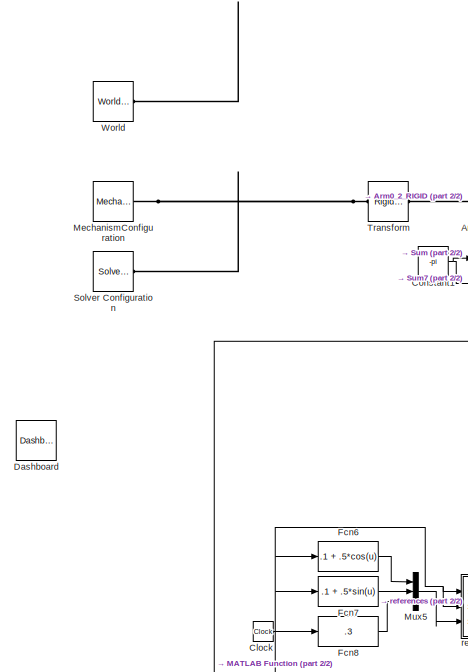
[diagram: root canvas - part 1/2, left side, full height]
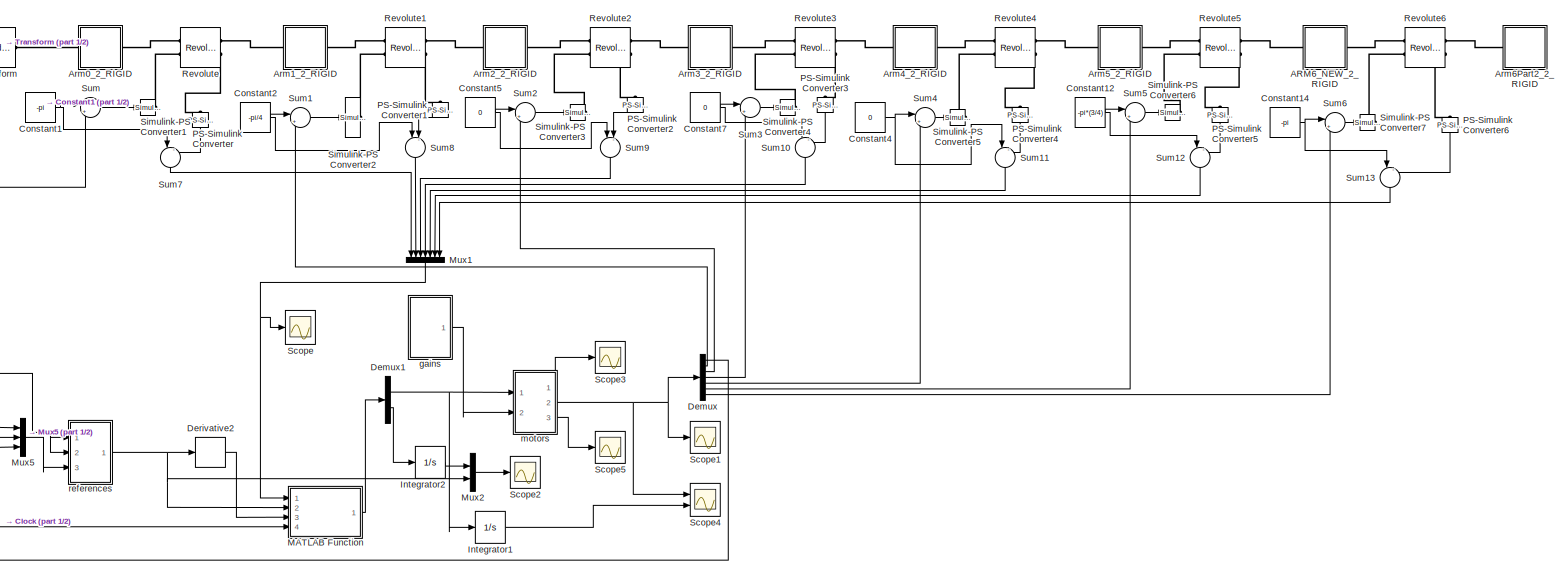
[diagram: root canvas - part 2/2, most of the canvas]
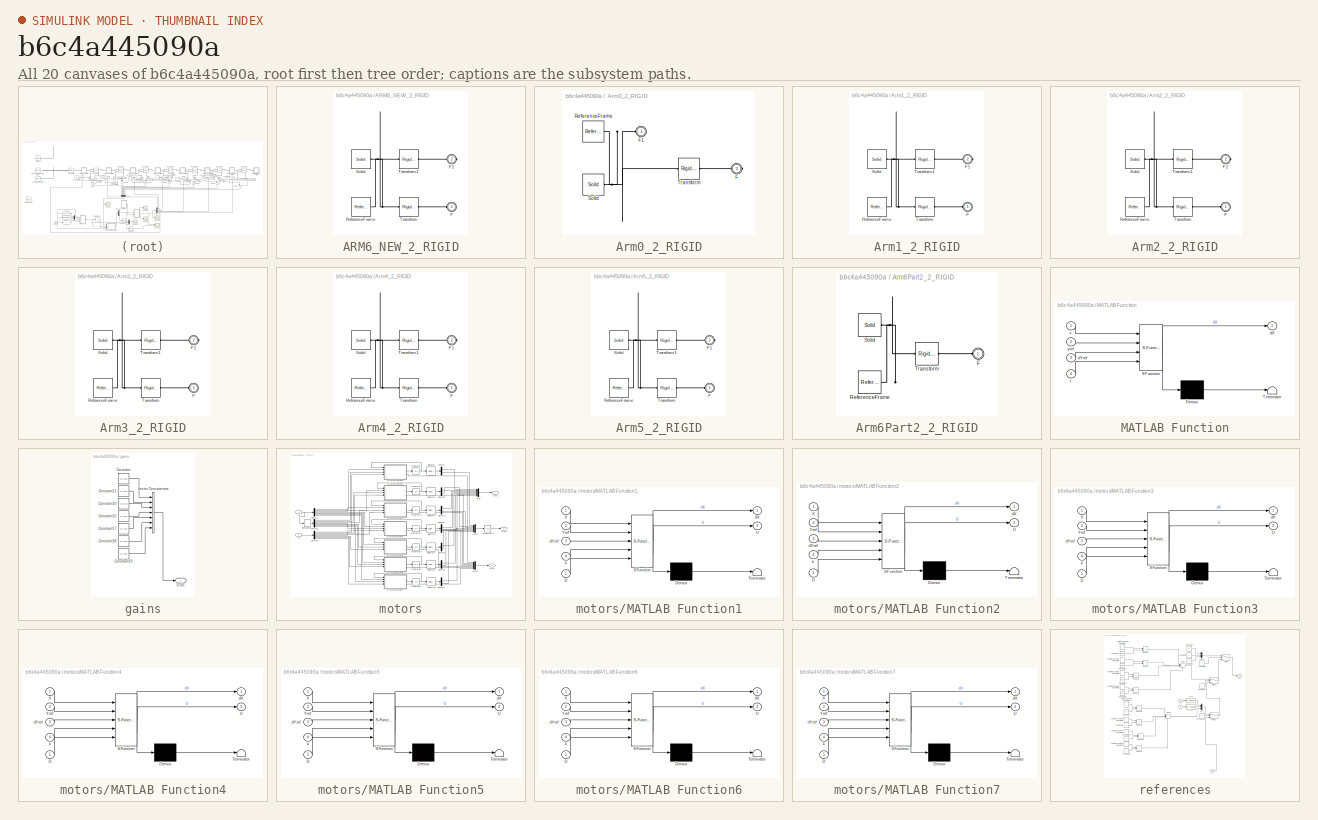
[diagram: thumbnail index - all 20 canvases of the model, root first then tree order]
MODEL slx_b6c4a445090a
KIND model
CONFIG AbsTol = auto
CONFIG EnableMultiTasking = off
CONFIG FixedStep = auto
CONFIG MaxStep = auto
CONFIG MinStep = auto
CONFIG RelTol = 1e-6
CONFIG SampleTimeConstraint = Unconstrained
CONFIG Solver = ode113
CONFIG SolverName = ode113
CONFIG StartTime = 0.0
CONFIG StopTime = 2.5
WORKSPACE source: external: MATLAB File  (data not in archive)
BLOCK [SubSystem] ARM6_NEW_2_RIGID
  Ports = [0, 0, 0, 0, 0, 1, 1]
  RequestExecContextInheritance = off
BLOCK [PMIOPort] ARM6_NEW_2_RIGID/F
  Side = Left
BLOCK [PMIOPort] ARM6_NEW_2_RIGID/F1
  Port = 2
  Side = Right
BLOCK [Reference] ARM6_NEW_2_RIGID/ReferenceFrame  REF=sm_lib/Frames and
Transforms/Reference
Frame
  Ports = [0, 0, 0, 0, 0, 0, 1]
  SourceBlock = sm_lib/Frames and\nTransforms/Reference\nFrame
  SourceProductBaseCode = MS
  SourceProductName = Simscape Multibody
  SourceType = Reference\nFrame
BLOCK [Reference] ARM6_NEW_2_RIGID/Solid  REF=sm_lib/Body Elements/Solid
  Ports = [0, 0, 0, 0, 0, 0, 1]
  SourceBlock = sm_lib/Body Elements/Solid
  SourceProductBaseCode = MS
  SourceProductName = Simscape Multibody
  SourceType = Solid
BLOCK [Reference] ARM6_NEW_2_RIGID/Transform  REF=sm_lib/Frames and
Transforms/Rigid
Transform
  Ports = [0, 0, 0, 0, 0, 1, 1]
  SourceBlock = sm_lib/Frames and\nTransforms/Rigid\nTransform
  SourceProductBaseCode = MS
  SourceProductName = Simscape Multibody
  SourceType = Rigid\nTransform
BLOCK [Reference] ARM6_NEW_2_RIGID/Transform1  REF=sm_lib/Frames and
Transforms/Rigid
Transform
  Ports = [0, 0, 0, 0, 0, 1, 1]
  SourceBlock = sm_lib/Frames and\nTransforms/Rigid\nTransform
  SourceProductBaseCode = MS
  SourceProductName = Simscape Multibody
  SourceType = Rigid\nTransform
BLOCK [SubSystem] Arm0_2_RIGID
  Ports = [0, 0, 0, 0, 0, 1, 1]
  RequestExecContextInheritance = off
BLOCK [PMIOPort] Arm0_2_RIGID/F
  Port = 2
  Side = Right
BLOCK [PMIOPort] Arm0_2_RIGID/F1
  Side = Left
BLOCK [Reference] Arm0_2_RIGID/ReferenceFrame  REF=sm_lib/Frames and
Transforms/Reference
Frame
  Ports = [0, 0, 0, 0, 0, 0, 1]
  SourceBlock = sm_lib/Frames and\nTransforms/Reference\nFrame
  SourceProductBaseCode = MS
  SourceProductName = Simscape Multibody
  SourceType = Reference\nFrame
BLOCK [Reference] Arm0_2_RIGID/Solid  REF=sm_lib/Body Elements/Solid
  Ports = [0, 0, 0, 0, 0, 0, 1]
  SourceBlock = sm_lib/Body Elements/Solid
  SourceProductBaseCode = MS
  SourceProductName = Simscape Multibody
  SourceType = Solid
BLOCK [Reference] Arm0_2_RIGID/Transform  REF=sm_lib/Frames and
Transforms/Rigid
Transform
  Ports = [0, 0, 0, 0, 0, 1, 1]
  SourceBlock = sm_lib/Frames and\nTransforms/Rigid\nTransform
  SourceProductBaseCode = MS
  SourceProductName = Simscape Multibody
  SourceType = Rigid\nTransform
BLOCK [SubSystem] Arm1_2_RIGID
  Ports = [0, 0, 0, 0, 0, 1, 1]
  RequestExecContextInheritance = off
BLOCK [PMIOPort] Arm1_2_RIGID/F
  Side = Left
BLOCK [PMIOPort] Arm1_2_RIGID/F1
  Port = 2
  Side = Right
BLOCK [Reference] Arm1_2_RIGID/ReferenceFrame  REF=sm_lib/Frames and
Transforms/Reference
Frame
  Ports = [0, 0, 0, 0, 0, 0, 1]
  SourceBlock = sm_lib/Frames and\nTransforms/Reference\nFrame
  SourceProductBaseCode = MS
  SourceProductName = Simscape Multibody
  SourceType = Reference\nFrame
BLOCK [Reference] Arm1_2_RIGID/Solid  REF=sm_lib/Body Elements/Solid
  Ports = [0, 0, 0, 0, 0, 0, 1]
  SourceBlock = sm_lib/Body Elements/Solid
  SourceProductBaseCode = MS
  SourceProductName = Simscape Multibody
  SourceType = Solid
BLOCK [Reference] Arm1_2_RIGID/Transform  REF=sm_lib/Frames and
Transforms/Rigid
Transform
  Ports = [0, 0, 0, 0, 0, 1, 1]
  SourceBlock = sm_lib/Frames and\nTransforms/Rigid\nTransform
  SourceProductBaseCode = MS
  SourceProductName = Simscape Multibody
  SourceType = Rigid\nTransform
BLOCK [Reference] Arm1_2_RIGID/Transform1  REF=sm_lib/Frames and
Transforms/Rigid
Transform
  Ports = [0, 0, 0, 0, 0, 1, 1]
  SourceBlock = sm_lib/Frames and\nTransforms/Rigid\nTransform
  SourceProductBaseCode = MS
  SourceProductName = Simscape Multibody
  SourceType = Rigid\nTransform
BLOCK [SubSystem] Arm2_2_RIGID
  Ports = [0, 0, 0, 0, 0, 1, 1]
  RequestExecContextInheritance = off
BLOCK [PMIOPort] Arm2_2_RIGID/F
  Side = Left
BLOCK [PMIOPort] Arm2_2_RIGID/F1
  Port = 2
  Side = Right
BLOCK [Reference] Arm2_2_RIGID/ReferenceFrame  REF=sm_lib/Frames and
Transforms/Reference
Frame
  Ports = [0, 0, 0, 0, 0, 0, 1]
  SourceBlock = sm_lib/Frames and\nTransforms/Reference\nFrame
  SourceProductBaseCode = MS
  SourceProductName = Simscape Multibody
  SourceType = Reference\nFrame
BLOCK [Reference] Arm2_2_RIGID/Solid  REF=sm_lib/Body Elements/Solid
  Ports = [0, 0, 0, 0, 0, 0, 1]
  SourceBlock = sm_lib/Body Elements/Solid
  SourceProductBaseCode = MS
  SourceProductName = Simscape Multibody
  SourceType = Solid
BLOCK [Reference] Arm2_2_RIGID/Transform  REF=sm_lib/Frames and
Transforms/Rigid
Transform
  Ports = [0, 0, 0, 0, 0, 1, 1]
  SourceBlock = sm_lib/Frames and\nTransforms/Rigid\nTransform
  SourceProductBaseCode = MS
  SourceProductName = Simscape Multibody
  SourceType = Rigid\nTransform
BLOCK [Reference] Arm2_2_RIGID/Transform1  REF=sm_lib/Frames and
Transforms/Rigid
Transform
  Ports = [0, 0, 0, 0, 0, 1, 1]
  SourceBlock = sm_lib/Frames and\nTransforms/Rigid\nTransform
  SourceProductBaseCode = MS
  SourceProductName = Simscape Multibody
  SourceType = Rigid\nTransform
BLOCK [SubSystem] Arm3_2_RIGID
  Ports = [0, 0, 0, 0, 0, 1, 1]
  RequestExecContextInheritance = off
BLOCK [PMIOPort] Arm3_2_RIGID/F
  Side = Left
BLOCK [PMIOPort] Arm3_2_RIGID/F1
  Port = 2
  Side = Right
BLOCK [Reference] Arm3_2_RIGID/ReferenceFrame  REF=sm_lib/Frames and
Transforms/Reference
Frame
  Ports = [0, 0, 0, 0, 0, 0, 1]
  SourceBlock = sm_lib/Frames and\nTransforms/Reference\nFrame
  SourceProductBaseCode = MS
  SourceProductName = Simscape Multibody
  SourceType = Reference\nFrame
BLOCK [Reference] Arm3_2_RIGID/Solid  REF=sm_lib/Body Elements/Solid
  Ports = [0, 0, 0, 0, 0, 0, 1]
  SourceBlock = sm_lib/Body Elements/Solid
  SourceProductBaseCode = MS
  SourceProductName = Simscape Multibody
  SourceType = Solid
BLOCK [Reference] Arm3_2_RIGID/Transform  REF=sm_lib/Frames and
Transforms/Rigid
Transform
  Ports = [0, 0, 0, 0, 0, 1, 1]
  SourceBlock = sm_lib/Frames and\nTransforms/Rigid\nTransform
  SourceProductBaseCode = MS
  SourceProductName = Simscape Multibody
  SourceType = Rigid\nTransform
BLOCK [Reference] Arm3_2_RIGID/Transform1  REF=sm_lib/Frames and
Transforms/Rigid
Transform
  Ports = [0, 0, 0, 0, 0, 1, 1]
  SourceBlock = sm_lib/Frames and\nTransforms/Rigid\nTransform
  SourceProductBaseCode = MS
  SourceProductName = Simscape Multibody
  SourceType = Rigid\nTransform
BLOCK [SubSystem] Arm4_2_RIGID
  Ports = [0, 0, 0, 0, 0, 1, 1]
  RequestExecContextInheritance = off
BLOCK [PMIOPort] Arm4_2_RIGID/F
  Side = Left
BLOCK [PMIOPort] Arm4_2_RIGID/F1
  Port = 2
  Side = Right
BLOCK [Reference] Arm4_2_RIGID/ReferenceFrame  REF=sm_lib/Frames and
Transforms/Reference
Frame
  Ports = [0, 0, 0, 0, 0, 0, 1]
  SourceBlock = sm_lib/Frames and\nTransforms/Reference\nFrame
  SourceProductBaseCode = MS
  SourceProductName = Simscape Multibody
  SourceType = Reference\nFrame
BLOCK [Reference] Arm4_2_RIGID/Solid  REF=sm_lib/Body Elements/Solid
  Ports = [0, 0, 0, 0, 0, 0, 1]
  SourceBlock = sm_lib/Body Elements/Solid
  SourceProductBaseCode = MS
  SourceProductName = Simscape Multibody
  SourceType = Solid
BLOCK [Reference] Arm4_2_RIGID/Transform  REF=sm_lib/Frames and
Transforms/Rigid
Transform
  Ports = [0, 0, 0, 0, 0, 1, 1]
  SourceBlock = sm_lib/Frames and\nTransforms/Rigid\nTransform
  SourceProductBaseCode = MS
  SourceProductName = Simscape Multibody
  SourceType = Rigid\nTransform
BLOCK [Reference] Arm4_2_RIGID/Transform1  REF=sm_lib/Frames and
Transforms/Rigid
Transform
  Ports = [0, 0, 0, 0, 0, 1, 1]
  SourceBlock = sm_lib/Frames and\nTransforms/Rigid\nTransform
  SourceProductBaseCode = MS
  SourceProductName = Simscape Multibody
  SourceType = Rigid\nTransform
BLOCK [SubSystem] Arm5_2_RIGID
  Ports = [0, 0, 0, 0, 0, 1, 1]
  RequestExecContextInheritance = off
BLOCK [PMIOPort] Arm5_2_RIGID/F
  Side = Left
BLOCK [PMIOPort] Arm5_2_RIGID/F1
  Port = 2
  Side = Right
BLOCK [Reference] Arm5_2_RIGID/ReferenceFrame  REF=sm_lib/Frames and
Transforms/Reference
Frame
  Ports = [0, 0, 0, 0, 0, 0, 1]
  SourceBlock = sm_lib/Frames and\nTransforms/Reference\nFrame
  SourceProductBaseCode = MS
  SourceProductName = Simscape Multibody
  SourceType = Reference\nFrame
BLOCK [Reference] Arm5_2_RIGID/Solid  REF=sm_lib/Body Elements/Solid
  Ports = [0, 0, 0, 0, 0, 0, 1]
  SourceBlock = sm_lib/Body Elements/Solid
  SourceProductBaseCode = MS
  SourceProductName = Simscape Multibody
  SourceType = Solid
BLOCK [Reference] Arm5_2_RIGID/Transform  REF=sm_lib/Frames and
Transforms/Rigid
Transform
  Ports = [0, 0, 0, 0, 0, 1, 1]
  SourceBlock = sm_lib/Frames and\nTransforms/Rigid\nTransform
  SourceProductBaseCode = MS
  SourceProductName = Simscape Multibody
  SourceType = Rigid\nTransform
BLOCK [Reference] Arm5_2_RIGID/Transform1  REF=sm_lib/Frames and
Transforms/Rigid
Transform
  Ports = [0, 0, 0, 0, 0, 1, 1]
  SourceBlock = sm_lib/Frames and\nTransforms/Rigid\nTransform
  SourceProductBaseCode = MS
  SourceProductName = Simscape Multibody
  SourceType = Rigid\nTransform
BLOCK [SubSystem] Arm6Part2_2_RIGID
  Ports = [0, 0, 0, 0, 0, 1]
  RequestExecContextInheritance = off
BLOCK [PMIOPort] Arm6Part2_2_RIGID/F
  Side = Left
BLOCK [Reference] Arm6Part2_2_RIGID/ReferenceFrame  REF=sm_lib/Frames and
Transforms/Reference
Frame
  Ports = [0, 0, 0, 0, 0, 0, 1]
  SourceBlock = sm_lib/Frames and\nTransforms/Reference\nFrame
  SourceProductBaseCode = MS
  SourceProductName = Simscape Multibody
  SourceType = Reference\nFrame
BLOCK [Reference] Arm6Part2_2_RIGID/Solid  REF=sm_lib/Body Elements/Solid
  Ports = [0, 0, 0, 0, 0, 0, 1]
  SourceBlock = sm_lib/Body Elements/Solid
  SourceProductBaseCode = MS
  SourceProductName = Simscape Multibody
  SourceType = Solid
BLOCK [Reference] Arm6Part2_2_RIGID/Transform  REF=sm_lib/Frames and
Transforms/Rigid
Transform
  Ports = [0, 0, 0, 0, 0, 1, 1]
  SourceBlock = sm_lib/Frames and\nTransforms/Rigid\nTransform
  SourceProductBaseCode = MS
  SourceProductName = Simscape Multibody
  SourceType = Rigid\nTransform
BLOCK [Clock] Clock
  Decimation = 10000
BLOCK [Constant] Constant1
  Value = -pi
BLOCK [Constant] Constant12
  Value = -pi*(3/4)
BLOCK [Constant] Constant14
  Value = -pi
BLOCK [Constant] Constant2
  Value = -pi/4
BLOCK [Constant] Constant4
  Value = 0
BLOCK [Constant] Constant5
  Value = 0
BLOCK [Constant] Constant7
  Value = 0
BLOCK [Reference] Dashboard  REF=simulink/Dashboard
  Ports = []
  SourceBlock = simulink/Dashboard
  SourceProductBaseCode = SL
  SourceProductName = Simulink
BLOCK [Demux] Demux
  DisplayOption = bar
  Outputs = 7
  Ports = [1, 7]
BLOCK [Demux] Demux1
  DisplayOption = bar
  Outputs = [7 3]
  Ports = [1, 2]
BLOCK [Derivative] Derivative2
BLOCK [Fcn] Fcn6
  Expr = .1 + .5*cos(u)
BLOCK [Fcn] Fcn7
  Expr = .1 + .5*sin(u)
BLOCK [Fcn] Fcn8
  Expr = .3
BLOCK [Integrator] Integrator1
  InitialCondition = [0 0 0 0 0 0 0]
  LowerSaturationLimit = -4
  Ports = [1, 1]
  UpperSaturationLimit = 4
BLOCK [Integrator] Integrator2
  InitialCondition = [.148 0 1.2385]
  LowerSaturationLimit = -4
  Ports = [1, 1]
  UpperSaturationLimit = 4
BLOCK [SubSystem] MATLAB Function
  ErrorFcn = Stateflow.Translate.translate
  PermitHierarchicalResolution = ExplicitOnly
  Ports = [4, 1]
  RequestExecContextInheritance = off
  SFBlockType = MATLAB Function
  TreatAsAtomicUnit = on
BLOCK [Demux] MATLAB Function/ Demux 
  Outputs = 1
  Ports = [1, 1]
BLOCK [S-Function] MATLAB Function/ SFunction 
  EnableBusSupport = on
  FunctionName = sf_sfun
  PortCounts = [4 2]
  Ports = [4, 2]
  SFcnIsStateOwnerBlock = off
  SFunctionDeploymentMode = off
  Tag = Stateflow S-Function robot_model 2
BLOCK [Terminator] MATLAB Function/ Terminator 
BLOCK [Outport] MATLAB Function/dX
  IconDisplay = Port number
BLOCK [Inport] MATLAB Function/dYref
  IconDisplay = Port number
  Port = 3
BLOCK [Inport] MATLAB Function/t
  IconDisplay = Port number
  Port = 4
BLOCK [Inport] MATLAB Function/x
  IconDisplay = Port number
BLOCK [Inport] MATLAB Function/yref
  IconDisplay = Port number
  Port = 2
BLOCK [Reference] MechanismConfiguration  REF=sm_lib/Utilities/Mechanism
Configuration
  Ports = [0, 0, 0, 0, 0, 0, 1]
  SourceBlock = sm_lib/Utilities/Mechanism\nConfiguration
  SourceProductBaseCode = MS
  SourceProductName = Simscape Multibody
  SourceType = Mechanism\nConfiguration
BLOCK [Mux] Mux1
  DisplayOption = bar
  Inputs = 7
  Ports = [7, 1]
BLOCK [Mux] Mux2
  DisplayOption = bar
  Inputs = 2
  Ports = [2, 1]
BLOCK [Mux] Mux5
  DisplayOption = bar
  Inputs = 3
  Ports = [3, 1]
BLOCK [Reference] PS-Simulink Converter  REF=nesl_utility/PS-Simulink
Converter
  Ports = [0, 1, 0, 0, 0, 1]
  SourceBlock = nesl_utility/PS-Simulink\nConverter
  SourceProductBaseCode = SS
  SourceProductName = Simscape
  SourceType = PS-Simulink\nConverter
BLOCK [Reference] PS-Simulink Converter1  REF=nesl_utility/PS-Simulink
Converter
  Ports = [0, 1, 0, 0, 0, 1]
  SourceBlock = nesl_utility/PS-Simulink\nConverter
  SourceProductBaseCode = SS
  SourceProductName = Simscape
  SourceType = PS-Simulink\nConverter
BLOCK [Reference] PS-Simulink Converter2  REF=nesl_utility/PS-Simulink
Converter
  Ports = [0, 1, 0, 0, 0, 1]
  SourceBlock = nesl_utility/PS-Simulink\nConverter
  SourceProductBaseCode = SS
  SourceProductName = Simscape
  SourceType = PS-Simulink\nConverter
BLOCK [Reference] PS-Simulink Converter3  REF=nesl_utility/PS-Simulink
Converter
  Ports = [0, 1, 0, 0, 0, 1]
  SourceBlock = nesl_utility/PS-Simulink\nConverter
  SourceProductBaseCode = SS
  SourceProductName = Simscape
  SourceType = PS-Simulink\nConverter
BLOCK [Reference] PS-Simulink Converter4  REF=nesl_utility/PS-Simulink
Converter
  Ports = [0, 1, 0, 0, 0, 1]
  SourceBlock = nesl_utility/PS-Simulink\nConverter
  SourceProductBaseCode = SS
  SourceProductName = Simscape
  SourceType = PS-Simulink\nConverter
BLOCK [Reference] PS-Simulink Converter5  REF=nesl_utility/PS-Simulink
Converter
  Ports = [0, 1, 0, 0, 0, 1]
  SourceBlock = nesl_utility/PS-Simulink\nConverter
  SourceProductBaseCode = SS
  SourceProductName = Simscape
  SourceType = PS-Simulink\nConverter
BLOCK [Reference] PS-Simulink Converter6  REF=nesl_utility/PS-Simulink
Converter
  Ports = [0, 1, 0, 0, 0, 1]
  SourceBlock = nesl_utility/PS-Simulink\nConverter
  SourceProductBaseCode = SS
  SourceProductName = Simscape
  SourceType = PS-Simulink\nConverter
BLOCK [Reference] Revolute  REF=sm_lib/Joints/Revolute Joint
  Ports = [0, 0, 0, 0, 0, 2, 2]
  SourceBlock = sm_lib/Joints/Revolute Joint
  SourceProductBaseCode = MS
  SourceProductName = Simscape Multibody
  SourceType = Revolute Joint
BLOCK [Reference] Revolute1  REF=sm_lib/Joints/Revolute Joint
  Ports = [0, 0, 0, 0, 0, 2, 2]
  SourceBlock = sm_lib/Joints/Revolute Joint
  SourceProductBaseCode = MS
  SourceProductName = Simscape Multibody
  SourceType = Revolute Joint
BLOCK [Reference] Revolute2  REF=sm_lib/Joints/Revolute Joint
  Ports = [0, 0, 0, 0, 0, 2, 2]
  SourceBlock = sm_lib/Joints/Revolute Joint
  SourceProductBaseCode = MS
  SourceProductName = Simscape Multibody
  SourceType = Revolute Joint
BLOCK [Reference] Revolute3  REF=sm_lib/Joints/Revolute Joint
  Ports = [0, 0, 0, 0, 0, 2, 2]
  SourceBlock = sm_lib/Joints/Revolute Joint
  SourceProductBaseCode = MS
  SourceProductName = Simscape Multibody
  SourceType = Revolute Joint
BLOCK [Reference] Revolute4  REF=sm_lib/Joints/Revolute Joint
  Ports = [0, 0, 0, 0, 0, 2, 2]
  SourceBlock = sm_lib/Joints/Revolute Joint
  SourceProductBaseCode = MS
  SourceProductName = Simscape Multibody
  SourceType = Revolute Joint
BLOCK [Reference] Revolute5  REF=sm_lib/Joints/Revolute Joint
  Ports = [0, 0, 0, 0, 0, 2, 2]
  SourceBlock = sm_lib/Joints/Revolute Joint
  SourceProductBaseCode = MS
  SourceProductName = Simscape Multibody
  SourceType = Revolute Joint
BLOCK [Reference] Revolute6  REF=sm_lib/Joints/Revolute Joint
  Ports = [0, 0, 0, 0, 0, 2, 2]
  SourceBlock = sm_lib/Joints/Revolute Joint
  SourceProductBaseCode = MS
  SourceProductName = Simscape Multibody
  SourceType = Revolute Joint
BLOCK [Scope] Scope
  Floating = off
  NumInputPorts = 1
  Ports = [1]
  ScopeSpecificationString = Simulink.scopes.TimeScopeBlockCfg('CurrentConfiguration', extmgr.ConfigurationSet(extmgr.Configuration('Core','General UI',true),extmgr.Configuration('Core','Source UI',true),extmgr.Configuration('Sources','WiredSimulink',true,'DataLogging',true,'DataLoggingVariableName','DATA','DataLoggingSaveFormat','Array'),extmgr.Configuration('Visuals','Time Domain',true,'SerializedDisplays',{struct('MinYLimR...<+1758ch>
BLOCK [Scope] Scope1
  Floating = off
  NumInputPorts = 1
  Ports = [1]
  ScopeSpecificationString = Simulink.scopes.TimeScopeBlockCfg('CurrentConfiguration', extmgr.ConfigurationSet(extmgr.Configuration('Core','General UI',true),extmgr.Configuration('Core','Source UI',true),extmgr.Configuration('Sources','WiredSimulink',true,'DataLoggingVariableName','DATA4','DataLogging',true,'DataLoggingSaveFormat','Array'),extmgr.Configuration('Visuals','Time Domain',true,'SerializedDisplays',{struct('MinYLim...<+1811ch>
BLOCK [Scope] Scope2
  Floating = off
  NumInputPorts = 1
  Ports = [1]
  ScopeSpecificationString = Simulink.scopes.TimeScopeBlockCfg('CurrentConfiguration', extmgr.ConfigurationSet(extmgr.Configuration('Core','General UI',true),extmgr.Configuration('Core','Source UI',true),extmgr.Configuration('Sources','WiredSimulink',true,'DataLoggingVariableName','DATA3','DataLogging',true,'DataLoggingSaveFormat','Array'),extmgr.Configuration('Visuals','Time Domain',true,'SerializedDisplays',{struct('MinYLim...<+1793ch>
BLOCK [Scope] Scope3
  Floating = off
  NumInputPorts = 1
  Ports = [1]
  ScopeSpecificationString = Simulink.scopes.TimeScopeBlockCfg('CurrentConfiguration', extmgr.ConfigurationSet(extmgr.Configuration('Core','General UI',true),extmgr.Configuration('Core','Source UI',true),extmgr.Configuration('Sources','WiredSimulink',true,'DataLoggingVariableName','DATA1','DataLogging',true,'DataLoggingSaveFormat','Array'),extmgr.Configuration('Visuals','Time Domain',true,'SerializedDisplays',{struct('MinYLim...<+1801ch>
BLOCK [Scope] Scope4
  Floating = off
  NumInputPorts = 2
  Ports = [2]
  ScopeSpecificationString = Simulink.scopes.TimeScopeBlockCfg('CurrentConfiguration', extmgr.ConfigurationSet(extmgr.Configuration('Core','General UI',true),extmgr.Configuration('Core','Source UI',true),extmgr.Configuration('Sources','WiredSimulink',true,'DataLoggingVariableName','ScopeData2','DataLoggingSaveFormat','Array'),extmgr.Configuration('Visuals','Time Domain',true,'SerializedDisplays',{struct('MinYLimReal','-1.8924...<+2000ch>
BLOCK [Scope] Scope5
  Floating = off
  NumInputPorts = 1
  Ports = [1]
  ScopeSpecificationString = Simulink.scopes.TimeScopeBlockCfg('CurrentConfiguration', extmgr.ConfigurationSet(extmgr.Configuration('Core','General UI',true),extmgr.Configuration('Core','Source UI',true),extmgr.Configuration('Sources','WiredSimulink',true,'DataLoggingVariableName','DATA2','DataLogging',true,'DataLoggingSaveFormat','Array'),extmgr.Configuration('Visuals','Time Domain',true,'SerializedDisplays',{struct('MinYLim...<+1807ch>
BLOCK [Reference] Simulink-PS Converter1  REF=nesl_utility/Simulink-PS
Converter
  Ports = [1, 0, 0, 0, 0, 0, 1]
  SourceBlock = nesl_utility/Simulink-PS\nConverter
  SourceProductBaseCode = SS
  SourceProductName = Simscape
  SourceType = Simulink-PS\nConverter
BLOCK [Reference] Simulink-PS Converter2  REF=nesl_utility/Simulink-PS
Converter
  Ports = [1, 0, 0, 0, 0, 0, 1]
  SourceBlock = nesl_utility/Simulink-PS\nConverter
  SourceProductBaseCode = SS
  SourceProductName = Simscape
  SourceType = Simulink-PS\nConverter
BLOCK [Reference] Simulink-PS Converter3  REF=nesl_utility/Simulink-PS
Converter
  Ports = [1, 0, 0, 0, 0, 0, 1]
  SourceBlock = nesl_utility/Simulink-PS\nConverter
  SourceProductBaseCode = SS
  SourceProductName = Simscape
  SourceType = Simulink-PS\nConverter
BLOCK [Reference] Simulink-PS Converter4  REF=nesl_utility/Simulink-PS
Converter
  Ports = [1, 0, 0, 0, 0, 0, 1]
  SourceBlock = nesl_utility/Simulink-PS\nConverter
  SourceProductBaseCode = SS
  SourceProductName = Simscape
  SourceType = Simulink-PS\nConverter
BLOCK [Reference] Simulink-PS Converter5  REF=nesl_utility/Simulink-PS
Converter
  Ports = [1, 0, 0, 0, 0, 0, 1]
  SourceBlock = nesl_utility/Simulink-PS\nConverter
  SourceProductBaseCode = SS
  SourceProductName = Simscape
  SourceType = Simulink-PS\nConverter
BLOCK [Reference] Simulink-PS Converter6  REF=nesl_utility/Simulink-PS
Converter
  Ports = [1, 0, 0, 0, 0, 0, 1]
  SourceBlock = nesl_utility/Simulink-PS\nConverter
  SourceProductBaseCode = SS
  SourceProductName = Simscape
  SourceType = Simulink-PS\nConverter
BLOCK [Reference] Simulink-PS Converter7  REF=nesl_utility/Simulink-PS
Converter
  Ports = [1, 0, 0, 0, 0, 0, 1]
  SourceBlock = nesl_utility/Simulink-PS\nConverter
  SourceProductBaseCode = SS
  SourceProductName = Simscape
  SourceType = Simulink-PS\nConverter
BLOCK [Reference] Solver Configuration  REF=nesl_utility/Solver
Configuration
  Ports = [0, 0, 0, 0, 0, 0, 1]
  SourceBlock = nesl_utility/Solver\nConfiguration
  SourceProductBaseCode = SS
  SourceProductName = Simscape
  SourceType = Solver\nConfiguration
BLOCK [Sum] Sum
  IconShape = round
  InputSameDT = off
  Inputs = |++
  OutDataTypeStr = Inherit: Inherit via internal rule
  Ports = [2, 1]
  SaturateOnIntegerOverflow = off
BLOCK [Sum] Sum1
  IconShape = round
  InputSameDT = off
  Inputs = |++
  OutDataTypeStr = Inherit: Inherit via internal rule
  Ports = [2, 1]
  SaturateOnIntegerOverflow = off
BLOCK [Sum] Sum10
  IconShape = round
  InputSameDT = off
  Inputs = |-+
  OutDataTypeStr = Inherit: Inherit via internal rule
  Ports = [2, 1]
  SaturateOnIntegerOverflow = off
BLOCK [Sum] Sum11
  IconShape = round
  InputSameDT = off
  Inputs = |-+
  OutDataTypeStr = Inherit: Inherit via internal rule
  Ports = [2, 1]
  SaturateOnIntegerOverflow = off
BLOCK [Sum] Sum12
  IconShape = round
  InputSameDT = off
  Inputs = |-+
  OutDataTypeStr = Inherit: Inherit via internal rule
  Ports = [2, 1]
  SaturateOnIntegerOverflow = off
BLOCK [Sum] Sum13
  IconShape = round
  InputSameDT = off
  Inputs = |-+
  OutDataTypeStr = Inherit: Inherit via internal rule
  Ports = [2, 1]
  SaturateOnIntegerOverflow = off
BLOCK [Sum] Sum2
  IconShape = round
  InputSameDT = off
  Inputs = |++
  OutDataTypeStr = Inherit: Inherit via internal rule
  Ports = [2, 1]
  SaturateOnIntegerOverflow = off
BLOCK [Sum] Sum3
  IconShape = round
  InputSameDT = off
  Inputs = |++
  OutDataTypeStr = Inherit: Inherit via internal rule
  Ports = [2, 1]
  SaturateOnIntegerOverflow = off
BLOCK [Sum] Sum4
  IconShape = round
  InputSameDT = off
  Inputs = |++
  OutDataTypeStr = Inherit: Inherit via internal rule
  Ports = [2, 1]
  SaturateOnIntegerOverflow = off
BLOCK [Sum] Sum5
  IconShape = round
  InputSameDT = off
  Inputs = |++
  OutDataTypeStr = Inherit: Inherit via internal rule
  Ports = [2, 1]
  SaturateOnIntegerOverflow = off
BLOCK [Sum] Sum6
  IconShape = round
  InputSameDT = off
  Inputs = |++
  OutDataTypeStr = Inherit: Inherit via internal rule
  Ports = [2, 1]
  SaturateOnIntegerOverflow = off
BLOCK [Sum] Sum7
  IconShape = round
  InputSameDT = off
  Inputs = |-+
  OutDataTypeStr = Inherit: Inherit via internal rule
  Ports = [2, 1]
  SaturateOnIntegerOverflow = off
BLOCK [Sum] Sum8
  IconShape = round
  InputSameDT = off
  Inputs = |-+
  OutDataTypeStr = Inherit: Inherit via internal rule
  Ports = [2, 1]
  SaturateOnIntegerOverflow = off
BLOCK [Sum] Sum9
  IconShape = round
  InputSameDT = off
  Inputs = |-+
  OutDataTypeStr = Inherit: Inherit via internal rule
  Ports = [2, 1]
  SaturateOnIntegerOverflow = off
BLOCK [Reference] Transform  REF=sm_lib/Frames and
Transforms/Rigid
Transform
  Ports = [0, 0, 0, 0, 0, 1, 1]
  SourceBlock = sm_lib/Frames and\nTransforms/Rigid\nTransform
  SourceProductBaseCode = MS
  SourceProductName = Simscape Multibody
  SourceType = Rigid\nTransform
BLOCK [Reference] World  REF=sm_lib/Frames and
Transforms/World Frame
  Ports = [0, 0, 0, 0, 0, 0, 1]
  SourceBlock = sm_lib/Frames and\nTransforms/World Frame
  SourceProductBaseCode = MS
  SourceProductName = Simscape Multibody
  SourceType = World Frame
BLOCK [SubSystem] gains
  Ports = [0, 1]
  RequestExecContextInheritance = off
BLOCK [Constant] gains/Constant
  Value = [1 0 0]
BLOCK [Constant] gains/Constant10
  Value = [1 0 0]
BLOCK [Constant] gains/Constant11
  Value = [1 0 0]
BLOCK [Constant] gains/Constant15
  Value = [1 0 0]
BLOCK [Constant] gains/Constant17
  Value = [1 0 0]
BLOCK [Constant] gains/Constant18
  Value = [1 0 0]
BLOCK [Constant] gains/Constant19
  Value = [1 0 0]
BLOCK [Outport] gains/Out1
  IconDisplay = Port number
BLOCK [Concatenate] gains/Vector Concatenate
  NumInputs = 7
  Ports = [7, 1]
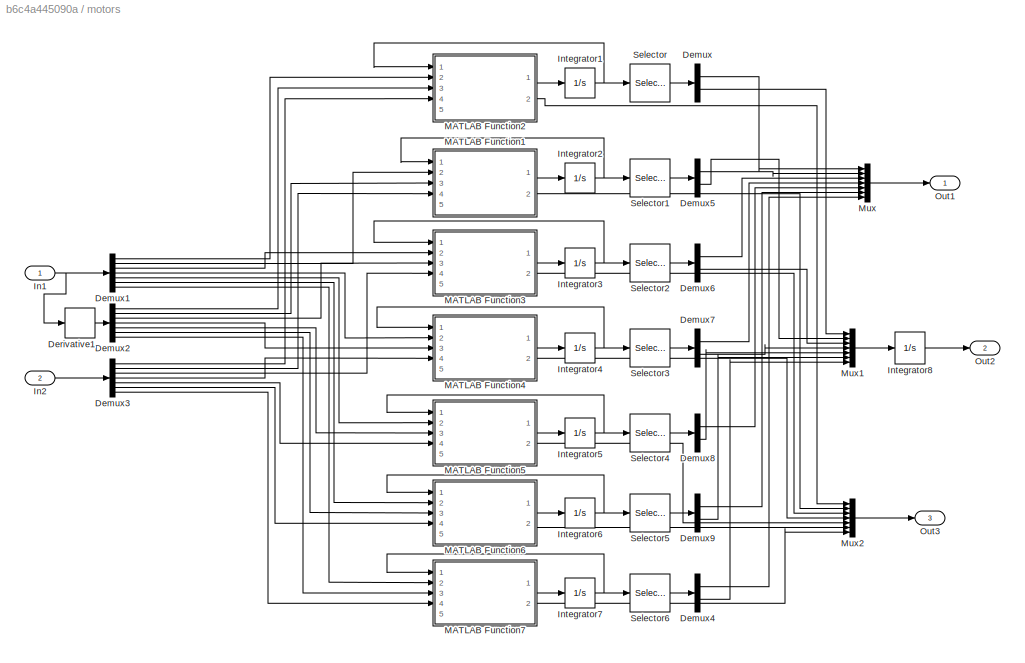
BLOCK [SubSystem] motors
  InitFcn = init_robot
  Ports = [2, 3]
  RequestExecContextInheritance = off
BLOCK [Demux] motors/Demux
  DisplayOption = bar
  Outputs = 2
  Ports = [1, 2]
BLOCK [Demux] motors/Demux1
  DisplayOption = bar
  Outputs = 7
  Ports = [1, 7]
BLOCK [Demux] motors/Demux2
  DisplayOption = bar
  Outputs = 7
  Ports = [1, 7]
BLOCK [Demux] motors/Demux3
  DisplayOption = bar
  Outputs = [3 3 3 3 3 3 3]
  Ports = [1, 7]
BLOCK [Demux] motors/Demux4
  DisplayOption = bar
  Outputs = 2
  Ports = [1, 2]
BLOCK [Demux] motors/Demux5
  DisplayOption = bar
  Outputs = 2
  Ports = [1, 2]
BLOCK [Demux] motors/Demux6
  DisplayOption = bar
  Outputs = 2
  Ports = [1, 2]
BLOCK [Demux] motors/Demux7
  DisplayOption = bar
  Outputs = 2
  Ports = [1, 2]
BLOCK [Demux] motors/Demux8
  DisplayOption = bar
  Outputs = 2
  Ports = [1, 2]
BLOCK [Demux] motors/Demux9
  DisplayOption = bar
  Outputs = 2
  Ports = [1, 2]
BLOCK [Derivative] motors/Derivative1
BLOCK [Inport] motors/In1
  IconDisplay = Port number
BLOCK [Inport] motors/In2
  IconDisplay = Port number
  Port = 2
BLOCK [Integrator] motors/Integrator1
  InitialCondition = [0 0 0]
  Ports = [1, 1]
BLOCK [Integrator] motors/Integrator2
  InitialCondition = [0 0 0]
  Ports = [1, 1]
BLOCK [Integrator] motors/Integrator3
  InitialCondition = [0 0 0]
  Ports = [1, 1]
BLOCK [Integrator] motors/Integrator4
  InitialCondition = [0 0 0]
  Ports = [1, 1]
BLOCK [Integrator] motors/Integrator5
  InitialCondition = [0 0 0]
  Ports = [1, 1]
BLOCK [Integrator] motors/Integrator6
  InitialCondition = [0 0 0]
  Ports = [1, 1]
BLOCK [Integrator] motors/Integrator7
  InitialCondition = [0 0 0]
  Ports = [1, 1]
BLOCK [Integrator] motors/Integrator8
  InitialCondition = [0 0 0 0 0 0 0]
  LowerSaturationLimit = -4
  Ports = [1, 1]
  UpperSaturationLimit = 4
BLOCK [SubSystem] motors/MATLAB Function1
  ErrorFcn = Stateflow.Translate.translate
  PermitHierarchicalResolution = ExplicitOnly
  Ports = [5, 2]
  RequestExecContextInheritance = off
  SFBlockType = MATLAB Function
  TreatAsAtomicUnit = on
BLOCK [Demux] motors/MATLAB Function1/ Demux 
  Outputs = 1
  Ports = [1, 1]
BLOCK [S-Function] motors/MATLAB Function1/ SFunction 
  EnableBusSupport = on
  FunctionName = sf_sfun
  PortCounts = [5 3]
  Ports = [5, 3]
  SFcnIsStateOwnerBlock = off
  SFunctionDeploymentMode = off
  Tag = Stateflow S-Function robot_model 14
BLOCK [Terminator] motors/MATLAB Function1/ Terminator 
BLOCK [Inport] motors/MATLAB Function1/D
  IconDisplay = Port number
  Port = 5
BLOCK [Outport] motors/MATLAB Function1/U
  IconDisplay = Port number
  Port = 2
BLOCK [Inport] motors/MATLAB Function1/X
  IconDisplay = Port number
BLOCK [Inport] motors/MATLAB Function1/Yref
  IconDisplay = Port number
  Port = 2
BLOCK [Outport] motors/MATLAB Function1/dX
  IconDisplay = Port number
BLOCK [Inport] motors/MATLAB Function1/dYref
  IconDisplay = Port number
  Port = 3
BLOCK [Inport] motors/MATLAB Function1/k
  IconDisplay = Port number
  Port = 4
BLOCK [SubSystem] motors/MATLAB Function2
  ErrorFcn = Stateflow.Translate.translate
  PermitHierarchicalResolution = ExplicitOnly
  Ports = [5, 2]
  RequestExecContextInheritance = off
  SFBlockType = MATLAB Function
  TreatAsAtomicUnit = on
BLOCK [Demux] motors/MATLAB Function2/ Demux 
  Outputs = 1
  Ports = [1, 1]
BLOCK [S-Function] motors/MATLAB Function2/ SFunction 
  EnableBusSupport = on
  FunctionName = sf_sfun
  PortCounts = [5 3]
  Ports = [5, 3]
  SFcnIsStateOwnerBlock = off
  SFunctionDeploymentMode = off
  Tag = Stateflow S-Function robot_model 15
BLOCK [Terminator] motors/MATLAB Function2/ Terminator 
BLOCK [Inport] motors/MATLAB Function2/D
  IconDisplay = Port number
  Port = 5
BLOCK [Outport] motors/MATLAB Function2/U
  IconDisplay = Port number
  Port = 2
BLOCK [Inport] motors/MATLAB Function2/X
  IconDisplay = Port number
BLOCK [Inport] motors/MATLAB Function2/Yref
  IconDisplay = Port number
  Port = 2
BLOCK [Outport] motors/MATLAB Function2/dX
  IconDisplay = Port number
BLOCK [Inport] motors/MATLAB Function2/dYref
  IconDisplay = Port number
  Port = 3
BLOCK [Inport] motors/MATLAB Function2/k
  IconDisplay = Port number
  Port = 4
BLOCK [SubSystem] motors/MATLAB Function3
  ErrorFcn = Stateflow.Translate.translate
  PermitHierarchicalResolution = ExplicitOnly
  Ports = [5, 2]
  RequestExecContextInheritance = off
  SFBlockType = MATLAB Function
  TreatAsAtomicUnit = on
BLOCK [Demux] motors/MATLAB Function3/ Demux 
  Outputs = 1
  Ports = [1, 1]
BLOCK [S-Function] motors/MATLAB Function3/ SFunction 
  EnableBusSupport = on
  FunctionName = sf_sfun
  PortCounts = [5 3]
  Ports = [5, 3]
  SFcnIsStateOwnerBlock = off
  SFunctionDeploymentMode = off
  Tag = Stateflow S-Function robot_model 16
BLOCK [Terminator] motors/MATLAB Function3/ Terminator 
BLOCK [Inport] motors/MATLAB Function3/D
  IconDisplay = Port number
  Port = 5
BLOCK [Outport] motors/MATLAB Function3/U
  IconDisplay = Port number
  Port = 2
BLOCK [Inport] motors/MATLAB Function3/X
  IconDisplay = Port number
BLOCK [Inport] motors/MATLAB Function3/Yref
  IconDisplay = Port number
  Port = 2
BLOCK [Outport] motors/MATLAB Function3/dX
  IconDisplay = Port number
BLOCK [Inport] motors/MATLAB Function3/dYref
  IconDisplay = Port number
  Port = 3
BLOCK [Inport] motors/MATLAB Function3/k
  IconDisplay = Port number
  Port = 4
BLOCK [SubSystem] motors/MATLAB Function4
  ErrorFcn = Stateflow.Translate.translate
  PermitHierarchicalResolution = ExplicitOnly
  Ports = [5, 2]
  RequestExecContextInheritance = off
  SFBlockType = MATLAB Function
  TreatAsAtomicUnit = on
BLOCK [Demux] motors/MATLAB Function4/ Demux 
  Outputs = 1
  Ports = [1, 1]
BLOCK [S-Function] motors/MATLAB Function4/ SFunction 
  EnableBusSupport = on
  FunctionName = sf_sfun
  PortCounts = [5 3]
  Ports = [5, 3]
  SFcnIsStateOwnerBlock = off
  SFunctionDeploymentMode = off
  Tag = Stateflow S-Function robot_model 20
BLOCK [Terminator] motors/MATLAB Function4/ Terminator 
BLOCK [Inport] motors/MATLAB Function4/D
  IconDisplay = Port number
  Port = 5
BLOCK [Outport] motors/MATLAB Function4/U
  IconDisplay = Port number
  Port = 2
BLOCK [Inport] motors/MATLAB Function4/X
  IconDisplay = Port number
BLOCK [Inport] motors/MATLAB Function4/Yref
  IconDisplay = Port number
  Port = 2
BLOCK [Outport] motors/MATLAB Function4/dX
  IconDisplay = Port number
BLOCK [Inport] motors/MATLAB Function4/dYref
  IconDisplay = Port number
  Port = 3
BLOCK [Inport] motors/MATLAB Function4/k
  IconDisplay = Port number
  Port = 4
BLOCK [SubSystem] motors/MATLAB Function5
  ErrorFcn = Stateflow.Translate.translate
  PermitHierarchicalResolution = ExplicitOnly
  Ports = [5, 2]
  RequestExecContextInheritance = off
  SFBlockType = MATLAB Function
  TreatAsAtomicUnit = on
BLOCK [Demux] motors/MATLAB Function5/ Demux 
  Outputs = 1
  Ports = [1, 1]
BLOCK [S-Function] motors/MATLAB Function5/ SFunction 
  EnableBusSupport = on
  FunctionName = sf_sfun
  PortCounts = [5 3]
  Ports = [5, 3]
  SFcnIsStateOwnerBlock = off
  SFunctionDeploymentMode = off
  Tag = Stateflow S-Function robot_model 21
BLOCK [Terminator] motors/MATLAB Function5/ Terminator 
BLOCK [Inport] motors/MATLAB Function5/D
  IconDisplay = Port number
  Port = 5
BLOCK [Outport] motors/MATLAB Function5/U
  IconDisplay = Port number
  Port = 2
BLOCK [Inport] motors/MATLAB Function5/X
  IconDisplay = Port number
BLOCK [Inport] motors/MATLAB Function5/Yref
  IconDisplay = Port number
  Port = 2
BLOCK [Outport] motors/MATLAB Function5/dX
  IconDisplay = Port number
BLOCK [Inport] motors/MATLAB Function5/dYref
  IconDisplay = Port number
  Port = 3
BLOCK [Inport] motors/MATLAB Function5/k
  IconDisplay = Port number
  Port = 4
BLOCK [SubSystem] motors/MATLAB Function6
  ErrorFcn = Stateflow.Translate.translate
  PermitHierarchicalResolution = ExplicitOnly
  Ports = [5, 2]
  RequestExecContextInheritance = off
  SFBlockType = MATLAB Function
  TreatAsAtomicUnit = on
BLOCK [Demux] motors/MATLAB Function6/ Demux 
  Outputs = 1
  Ports = [1, 1]
BLOCK [S-Function] motors/MATLAB Function6/ SFunction 
  EnableBusSupport = on
  FunctionName = sf_sfun
  PortCounts = [5 3]
  Ports = [5, 3]
  SFcnIsStateOwnerBlock = off
  SFunctionDeploymentMode = off
  Tag = Stateflow S-Function robot_model 22
BLOCK [Terminator] motors/MATLAB Function6/ Terminator 
BLOCK [Inport] motors/MATLAB Function6/D
  IconDisplay = Port number
  Port = 5
BLOCK [Outport] motors/MATLAB Function6/U
  IconDisplay = Port number
  Port = 2
BLOCK [Inport] motors/MATLAB Function6/X
  IconDisplay = Port number
BLOCK [Inport] motors/MATLAB Function6/Yref
  IconDisplay = Port number
  Port = 2
BLOCK [Outport] motors/MATLAB Function6/dX
  IconDisplay = Port number
BLOCK [Inport] motors/MATLAB Function6/dYref
  IconDisplay = Port number
  Port = 3
BLOCK [Inport] motors/MATLAB Function6/k
  IconDisplay = Port number
  Port = 4
BLOCK [SubSystem] motors/MATLAB Function7
  ErrorFcn = Stateflow.Translate.translate
  PermitHierarchicalResolution = ExplicitOnly
  Ports = [5, 2]
  RequestExecContextInheritance = off
  SFBlockType = MATLAB Function
  TreatAsAtomicUnit = on
BLOCK [Demux] motors/MATLAB Function7/ Demux 
  Outputs = 1
  Ports = [1, 1]
BLOCK [S-Function] motors/MATLAB Function7/ SFunction 
  EnableBusSupport = on
  FunctionName = sf_sfun
  PortCounts = [5 3]
  Ports = [5, 3]
  SFcnIsStateOwnerBlock = off
  SFunctionDeploymentMode = off
  Tag = Stateflow S-Function robot_model 23
BLOCK [Terminator] motors/MATLAB Function7/ Terminator 
BLOCK [Inport] motors/MATLAB Function7/D
  IconDisplay = Port number
  Port = 5
BLOCK [Outport] motors/MATLAB Function7/U
  IconDisplay = Port number
  Port = 2
BLOCK [Inport] motors/MATLAB Function7/X
  IconDisplay = Port number
BLOCK [Inport] motors/MATLAB Function7/Yref
  IconDisplay = Port number
  Port = 2
BLOCK [Outport] motors/MATLAB Function7/dX
  IconDisplay = Port number
BLOCK [Inport] motors/MATLAB Function7/dYref
  IconDisplay = Port number
  Port = 3
BLOCK [Inport] motors/MATLAB Function7/k
  IconDisplay = Port number
  Port = 4
BLOCK [Mux] motors/Mux
  DisplayOption = bar
  Inputs = 7
  Ports = [7, 1]
BLOCK [Mux] motors/Mux1
  DisplayOption = bar
  Inputs = 7
  Ports = [7, 1]
BLOCK [Mux] motors/Mux2
  DisplayOption = bar
  Inputs = 7
  Ports = [7, 1]
BLOCK [Outport] motors/Out1
  IconDisplay = Port number
BLOCK [Outport] motors/Out2
  IconDisplay = Port number
  Port = 2
BLOCK [Outport] motors/Out3
  IconDisplay = Port number
  Port = 3
BLOCK [Selector] motors/Selector
  IndexOptions = Index vector (dialog)
  Indices = [2:3]
  InputPortWidth = 3
  OutputSizes = 1
  Ports = [1, 1]
BLOCK [Selector] motors/Selector1
  IndexOptions = Index vector (dialog)
  Indices = [2:3]
  InputPortWidth = 3
  OutputSizes = 1
  Ports = [1, 1]
BLOCK [Selector] motors/Selector2
  IndexOptions = Index vector (dialog)
  Indices = [2:3]
  InputPortWidth = 3
  OutputSizes = 1
  Ports = [1, 1]
BLOCK [Selector] motors/Selector3
  IndexOptions = Index vector (dialog)
  Indices = [2:3]
  InputPortWidth = 3
  OutputSizes = 1
  Ports = [1, 1]
BLOCK [Selector] motors/Selector4
  IndexOptions = Index vector (dialog)
  Indices = [2:3]
  InputPortWidth = 3
  OutputSizes = 1
  Ports = [1, 1]
BLOCK [Selector] motors/Selector5
  IndexOptions = Index vector (dialog)
  Indices = [2:3]
  InputPortWidth = 3
  OutputSizes = 1
  Ports = [1, 1]
BLOCK [Selector] motors/Selector6
  IndexOptions = Index vector (dialog)
  Indices = [2:3]
  InputPortWidth = 3
  OutputSizes = 1
  Ports = [1, 1]
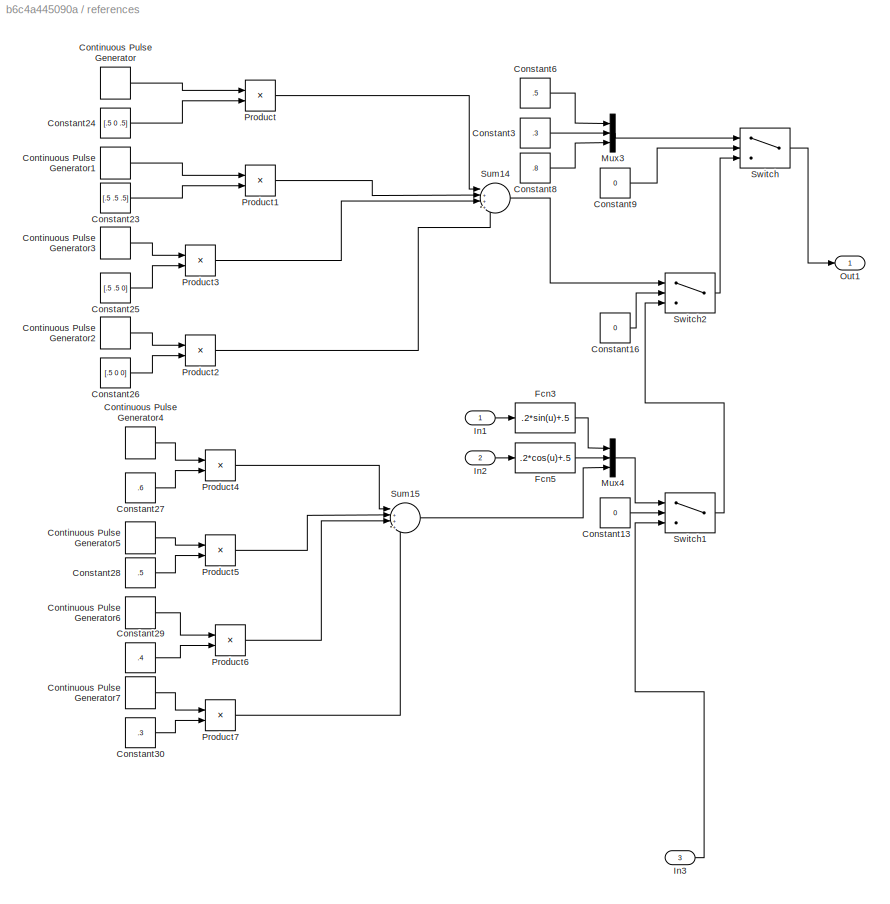
BLOCK [SubSystem] references
  Ports = [3, 1]
  RequestExecContextInheritance = off
BLOCK [Constant] references/Constant13
  Value = 0
BLOCK [Constant] references/Constant16
  Value = 0
BLOCK [Constant] references/Constant23
  Value = [.5 .5 .5]
BLOCK [Constant] references/Constant24
  Value = [.5 0 .5]
BLOCK [Constant] references/Constant25
  Value = [.5 .5 0]
BLOCK [Constant] references/Constant26
  Value = [.5 0 0]
BLOCK [Constant] references/Constant27
  Value = .6
BLOCK [Constant] references/Constant28
  Value = .5
BLOCK [Constant] references/Constant29
  Value = .4
BLOCK [Constant] references/Constant3
  Value = .3
BLOCK [Constant] references/Constant30
  Value = .3
BLOCK [Constant] references/Constant6
  Value = .5
BLOCK [Constant] references/Constant8
  Value = .8
BLOCK [Constant] references/Constant9
  Value = 0
BLOCK [DiscretePulseGenerator] references/Continuous Pulse Generator
  Period = 4
  Ports = [0, 1]
  PulseType = Time based
  PulseWidth = 25
BLOCK [DiscretePulseGenerator] references/Continuous Pulse Generator1
  Period = 4
  PhaseDelay = 1
  Ports = [0, 1]
  PulseType = Time based
  PulseWidth = 25
BLOCK [DiscretePulseGenerator] references/Continuous Pulse Generator2
  Period = 4
  PhaseDelay = 3
  Ports = [0, 1]
  PulseType = Time based
  PulseWidth = 25
BLOCK [DiscretePulseGenerator] references/Continuous Pulse Generator3
  Period = 4
  PhaseDelay = 2
  Ports = [0, 1]
  PulseType = Time based
  PulseWidth = 25
BLOCK [DiscretePulseGenerator] references/Continuous Pulse Generator4
  Period = 16
  Ports = [0, 1]
  PulseType = Time based
  PulseWidth = 25
BLOCK [DiscretePulseGenerator] references/Continuous Pulse Generator5
  Period = 16
  PhaseDelay = 4
  Ports = [0, 1]
  PulseType = Time based
  PulseWidth = 25
BLOCK [DiscretePulseGenerator] references/Continuous Pulse Generator6
  Period = 16
  PhaseDelay = 8
  Ports = [0, 1]
  PulseType = Time based
  PulseWidth = 25
BLOCK [DiscretePulseGenerator] references/Continuous Pulse Generator7
  Period = 16
  PhaseDelay = 12
  Ports = [0, 1]
  PulseType = Time based
  PulseWidth = 25
BLOCK [Fcn] references/Fcn3
  Expr = .2*sin(u)+.5
BLOCK [Fcn] references/Fcn5
  Expr = .2*cos(u)+.5
BLOCK [Inport] references/In1
  IconDisplay = Port number
BLOCK [Inport] references/In2
  IconDisplay = Port number
  Port = 2
BLOCK [Inport] references/In3
  IconDisplay = Port number
  Port = 3
BLOCK [Mux] references/Mux3
  DisplayOption = bar
  Inputs = 3
  Ports = [3, 1]
BLOCK [Mux] references/Mux4
  DisplayOption = bar
  Inputs = 3
  Ports = [3, 1]
BLOCK [Outport] references/Out1
  IconDisplay = Port number
BLOCK [Product] references/Product
  InputSameDT = off
  OutDataTypeStr = Inherit: Inherit via internal rule
  Ports = [2, 1]
  RndMeth = Floor
  SaturateOnIntegerOverflow = off
BLOCK [Product] references/Product1
  InputSameDT = off
  OutDataTypeStr = Inherit: Inherit via internal rule
  Ports = [2, 1]
  RndMeth = Floor
  SaturateOnIntegerOverflow = off
BLOCK [Product] references/Product2
  InputSameDT = off
  OutDataTypeStr = Inherit: Inherit via internal rule
  Ports = [2, 1]
  RndMeth = Floor
  SaturateOnIntegerOverflow = off
BLOCK [Product] references/Product3
  InputSameDT = off
  OutDataTypeStr = Inherit: Inherit via internal rule
  Ports = [2, 1]
  RndMeth = Floor
  SaturateOnIntegerOverflow = off
BLOCK [Product] references/Product4
  InputSameDT = off
  OutDataTypeStr = Inherit: Inherit via internal rule
  Ports = [2, 1]
  RndMeth = Floor
  SaturateOnIntegerOverflow = off
BLOCK [Product] references/Product5
  InputSameDT = off
  OutDataTypeStr = Inherit: Inherit via internal rule
  Ports = [2, 1]
  RndMeth = Floor
  SaturateOnIntegerOverflow = off
BLOCK [Product] references/Product6
  InputSameDT = off
  OutDataTypeStr = Inherit: Inherit via internal rule
  Ports = [2, 1]
  RndMeth = Floor
  SaturateOnIntegerOverflow = off
BLOCK [Product] references/Product7
  InputSameDT = off
  OutDataTypeStr = Inherit: Inherit via internal rule
  Ports = [2, 1]
  RndMeth = Floor
  SaturateOnIntegerOverflow = off
BLOCK [Sum] references/Sum14
  IconShape = round
  InputSameDT = off
  Inputs = |++++
  OutDataTypeStr = Inherit: Inherit via internal rule
  Ports = [4, 1]
  SaturateOnIntegerOverflow = off
BLOCK [Sum] references/Sum15
  IconShape = round
  InputSameDT = off
  Inputs = |++++
  OutDataTypeStr = Inherit: Inherit via internal rule
  Ports = [4, 1]
  SaturateOnIntegerOverflow = off
BLOCK [Switch] references/Switch
  Criteria = u2 > Threshold
  InputSameDT = off
  SaturateOnIntegerOverflow = off
BLOCK [Switch] references/Switch1
  Criteria = u2 > Threshold
  InputSameDT = off
  SaturateOnIntegerOverflow = off
BLOCK [Switch] references/Switch2
  Criteria = u2 > Threshold
  InputSameDT = off
  SaturateOnIntegerOverflow = off
NET Clock:1 -> Fcn6:1, Fcn7:1, Fcn8:1, MATLAB Function:4, references:1, references:2
NET Constant12:1 -> Sum12:1, Sum5:1
NET Constant14:1 -> Sum13:1, Sum6:1
NET Constant1:1 -> Sum7:1, Sum:1
NET Constant2:1 -> Sum1:1, Sum8:1
NET Constant4:1 -> Sum11:1, Sum4:1
NET Constant5:1 -> Sum2:1, Sum9:1
NET Constant7:1 -> Sum10:1, Sum3:1
NET Demux1:1 -> Integrator1:1, motors:1
LINE Demux1:2 -> Integrator2:1
LINE Demux:1 -> Sum:2
LINE Demux:2 -> Sum1:2
LINE Demux:3 -> Sum2:2
LINE Demux:4 -> Sum3:2
LINE Demux:5 -> Sum4:2
LINE Demux:6 -> Sum5:2
LINE Demux:7 -> Sum6:2
LINE Derivative2:1 -> MATLAB Function:3
LINE Fcn6:1 -> Mux5:1
LINE Fcn7:1 -> Mux5:2
LINE Fcn8:1 -> Mux5:3
LINE Integrator1:1 -> Scope4:2
LINE Integrator2:1 -> Mux2:1
LINE MATLAB Function:1 -> Demux1:1
NET Mux1:1 -> MATLAB Function:1, Scope:1
LINE Mux2:1 -> Scope2:1
LINE Mux5:1 -> references:3
LINE PS-Simulink Converter1:1 -> Sum8:2
LINE PS-Simulink Converter2:1 -> Sum9:2
LINE PS-Simulink Converter3:1 -> Sum10:2
LINE PS-Simulink Converter4:1 -> Sum11:2
LINE PS-Simulink Converter5:1 -> Sum12:2
LINE PS-Simulink Converter6:1 -> Sum13:2
LINE PS-Simulink Converter:1 -> Sum7:2
LINE Sum10:1 -> Mux1:4
LINE Sum11:1 -> Mux1:5
LINE Sum12:1 -> Mux1:6
LINE Sum13:1 -> Mux1:7
LINE Sum1:1 -> Simulink-PS Converter2:1
LINE Sum2:1 -> Simulink-PS Converter3:1
LINE Sum3:1 -> Simulink-PS Converter4:1
LINE Sum4:1 -> Simulink-PS Converter5:1
LINE Sum5:1 -> Simulink-PS Converter6:1
LINE Sum6:1 -> Simulink-PS Converter7:1
LINE Sum7:1 -> Mux1:1
LINE Sum8:1 -> Mux1:2
LINE Sum9:1 -> Mux1:3
LINE Sum:1 -> Simulink-PS Converter1:1
LINE gains/Constant10:1 -> gains/Vector Concatenate:3
LINE gains/Constant11:1 -> gains/Vector Concatenate:2
LINE gains/Constant15:1 -> gains/Vector Concatenate:4
LINE gains/Constant17:1 -> gains/Vector Concatenate:5
LINE gains/Constant18:1 -> gains/Vector Concatenate:6
LINE gains/Constant19:1 -> gains/Vector Concatenate:7
LINE gains/Constant:1 -> gains/Vector Concatenate:1
LINE gains/Vector Concatenate:1 -> gains/Out1:1
LINE gains:1 -> motors:2
LINE motors/Demux1:1 -> motors/MATLAB Function2:2
LINE motors/Demux1:2 -> motors/MATLAB Function1:2
LINE motors/Demux1:3 -> motors/MATLAB Function3:2
LINE motors/Demux1:4 -> motors/MATLAB Function4:2
LINE motors/Demux1:5 -> motors/MATLAB Function5:2
LINE motors/Demux1:6 -> motors/MATLAB Function6:2
LINE motors/Demux1:7 -> motors/MATLAB Function7:2
LINE motors/Demux2:1 -> motors/MATLAB Function2:3
LINE motors/Demux2:2 -> motors/MATLAB Function1:3
LINE motors/Demux2:3 -> motors/MATLAB Function3:3
LINE motors/Demux2:4 -> motors/MATLAB Function4:3
LINE motors/Demux2:5 -> motors/MATLAB Function5:3
LINE motors/Demux2:6 -> motors/MATLAB Function6:3
LINE motors/Demux2:7 -> motors/MATLAB Function7:3
LINE motors/Demux3:1 -> motors/MATLAB Function2:4
LINE motors/Demux3:2 -> motors/MATLAB Function1:4
LINE motors/Demux3:3 -> motors/MATLAB Function3:4
LINE motors/Demux3:4 -> motors/MATLAB Function4:4
LINE motors/Demux3:5 -> motors/MATLAB Function5:4
LINE motors/Demux3:6 -> motors/MATLAB Function6:4
LINE motors/Demux3:7 -> motors/MATLAB Function7:4
LINE motors/Demux4:1 -> motors/Mux:7
LINE motors/Demux4:2 -> motors/Mux1:7
LINE motors/Demux5:1 -> motors/Mux:2
LINE motors/Demux5:2 -> motors/Mux1:2
LINE motors/Demux6:1 -> motors/Mux:3
LINE motors/Demux6:2 -> motors/Mux1:3
LINE motors/Demux7:1 -> motors/Mux:4
LINE motors/Demux7:2 -> motors/Mux1:4
LINE motors/Demux8:1 -> motors/Mux:5
LINE motors/Demux8:2 -> motors/Mux1:5
LINE motors/Demux9:1 -> motors/Mux:6
LINE motors/Demux9:2 -> motors/Mux1:6
LINE motors/Demux:1 -> motors/Mux:1
LINE motors/Demux:2 -> motors/Mux1:1
LINE motors/Derivative1:1 -> motors/Demux2:1
NET motors/In1:1 -> motors/Demux1:1, motors/Derivative1:1
LINE motors/In2:1 -> motors/Demux3:1
NET motors/Integrator1:1 -> motors/MATLAB Function2:1, motors/Selector:1
NET motors/Integrator2:1 -> motors/MATLAB Function1:1, motors/Selector1:1
NET motors/Integrator3:1 -> motors/MATLAB Function3:1, motors/Selector2:1
NET motors/Integrator4:1 -> motors/MATLAB Function4:1, motors/Selector3:1
NET motors/Integrator5:1 -> motors/MATLAB Function5:1, motors/Selector4:1
NET motors/Integrator6:1 -> motors/MATLAB Function6:1, motors/Selector5:1
NET motors/Integrator7:1 -> motors/MATLAB Function7:1, motors/Selector6:1
LINE motors/Integrator8:1 -> motors/Out2:1
LINE motors/MATLAB Function1:1 -> motors/Integrator2:1
LINE motors/MATLAB Function1:2 -> motors/Mux2:2
LINE motors/MATLAB Function2:1 -> motors/Integrator1:1
LINE motors/MATLAB Function2:2 -> motors/Mux2:1
LINE motors/MATLAB Function3:1 -> motors/Integrator3:1
LINE motors/MATLAB Function3:2 -> motors/Mux2:3
LINE motors/MATLAB Function4:1 -> motors/Integrator4:1
LINE motors/MATLAB Function4:2 -> motors/Mux2:4
LINE motors/MATLAB Function5:1 -> motors/Integrator5:1
LINE motors/MATLAB Function5:2 -> motors/Mux2:5
LINE motors/MATLAB Function6:1 -> motors/Integrator6:1
LINE motors/MATLAB Function6:2 -> motors/Mux2:6
LINE motors/MATLAB Function7:1 -> motors/Integrator7:1
LINE motors/MATLAB Function7:2 -> motors/Mux2:7
LINE motors/Mux1:1 -> motors/Integrator8:1
LINE motors/Mux2:1 -> motors/Out3:1
LINE motors/Mux:1 -> motors/Out1:1
LINE motors/Selector1:1 -> motors/Demux5:1
LINE motors/Selector2:1 -> motors/Demux6:1
LINE motors/Selector3:1 -> motors/Demux7:1
LINE motors/Selector4:1 -> motors/Demux8:1
LINE motors/Selector5:1 -> motors/Demux9:1
LINE motors/Selector6:1 -> motors/Demux4:1
LINE motors/Selector:1 -> motors/Demux:1
LINE motors:1 -> Scope3:1
NET motors:2 -> Demux:1, Scope1:1, Scope4:1
LINE motors:3 -> Scope5:1
LINE references/Constant13:1 -> references/Switch1:2
LINE references/Constant16:1 -> references/Switch2:2
LINE references/Constant23:1 -> references/Product1:2
LINE references/Constant24:1 -> references/Product:2
LINE references/Constant25:1 -> references/Product3:2
LINE references/Constant26:1 -> references/Product2:2
LINE references/Constant27:1 -> references/Product4:2
LINE references/Constant28:1 -> references/Product5:2
LINE references/Constant29:1 -> references/Product6:2
LINE references/Constant30:1 -> references/Product7:2
LINE references/Constant3:1 -> references/Mux3:2
LINE references/Constant6:1 -> references/Mux3:1
LINE references/Constant8:1 -> references/Mux3:3
LINE references/Constant9:1 -> references/Switch:2
LINE references/Continuous Pulse Generator1:1 -> references/Product1:1
LINE references/Continuous Pulse Generator2:1 -> references/Product2:1
LINE references/Continuous Pulse Generator3:1 -> references/Product3:1
LINE references/Continuous Pulse Generator4:1 -> references/Product4:1
LINE references/Continuous Pulse Generator5:1 -> references/Product5:1
LINE references/Continuous Pulse Generator6:1 -> references/Product6:1
LINE references/Continuous Pulse Generator7:1 -> references/Product7:1
LINE references/Continuous Pulse Generator:1 -> references/Product:1
LINE references/Fcn3:1 -> references/Mux4:1
LINE references/Fcn5:1 -> references/Mux4:2
LINE references/In1:1 -> references/Fcn3:1
LINE references/In2:1 -> references/Fcn5:1
LINE references/In3:1 -> references/Switch1:3
LINE references/Mux3:1 -> references/Switch:1
LINE references/Mux4:1 -> references/Switch1:1
LINE references/Product1:1 -> references/Sum14:2
LINE references/Product2:1 -> references/Sum14:4
LINE references/Product3:1 -> references/Sum14:3
LINE references/Product4:1 -> references/Sum15:1
LINE references/Product5:1 -> references/Sum15:2
LINE references/Product6:1 -> references/Sum15:3
LINE references/Product7:1 -> references/Sum15:4
LINE references/Product:1 -> references/Sum14:1
LINE references/Sum14:1 -> references/Switch2:1
LINE references/Sum15:1 -> references/Mux4:3
LINE references/Switch1:1 -> references/Switch2:3
LINE references/Switch2:1 -> references/Switch:3
LINE references/Switch:1 -> references/Out1:1
NET references:1 -> Derivative2:1, MATLAB Function:2, Mux2:2
PLINE ARM6_NEW_2_RIGID/F1:RConn1 -- ARM6_NEW_2_RIGID/Transform1:RConn1
PLINE ARM6_NEW_2_RIGID/F:RConn1 -- ARM6_NEW_2_RIGID/Transform:RConn1
PNET net1: ARM6_NEW_2_RIGID/ReferenceFrame:RConn1 -- ARM6_NEW_2_RIGID/Solid:RConn1 -- ARM6_NEW_2_RIGID/Transform1:LConn1 -- ARM6_NEW_2_RIGID/Transform:LConn1
PLINE ARM6_NEW_2_RIGID:LConn1 -- Revolute5:RConn1
PLINE ARM6_NEW_2_RIGID:RConn1 -- Revolute6:LConn1
PNET net2: Arm0_2_RIGID/F1:RConn1 -- Arm0_2_RIGID/ReferenceFrame:RConn1 -- Arm0_2_RIGID/Solid:RConn1 -- Arm0_2_RIGID/Transform:LConn1
PLINE Arm0_2_RIGID/F:RConn1 -- Arm0_2_RIGID/Transform:RConn1
PLINE Arm0_2_RIGID:LConn1 -- Transform:RConn1
PLINE Arm0_2_RIGID:RConn1 -- Revolute:LConn1
PLINE Arm1_2_RIGID/F1:RConn1 -- Arm1_2_RIGID/Transform1:RConn1
PLINE Arm1_2_RIGID/F:RConn1 -- Arm1_2_RIGID/Transform:RConn1
PNET net3: Arm1_2_RIGID/ReferenceFrame:RConn1 -- Arm1_2_RIGID/Solid:RConn1 -- Arm1_2_RIGID/Transform1:LConn1 -- Arm1_2_RIGID/Transform:LConn1
PLINE Arm1_2_RIGID:LConn1 -- Revolute:RConn1
PLINE Arm1_2_RIGID:RConn1 -- Revolute1:LConn1
PLINE Arm2_2_RIGID/F1:RConn1 -- Arm2_2_RIGID/Transform1:RConn1
PLINE Arm2_2_RIGID/F:RConn1 -- Arm2_2_RIGID/Transform:RConn1
PNET net4: Arm2_2_RIGID/ReferenceFrame:RConn1 -- Arm2_2_RIGID/Solid:RConn1 -- Arm2_2_RIGID/Transform1:LConn1 -- Arm2_2_RIGID/Transform:LConn1
PLINE Arm2_2_RIGID:LConn1 -- Revolute1:RConn1
PLINE Arm2_2_RIGID:RConn1 -- Revolute2:LConn1
PLINE Arm3_2_RIGID/F1:RConn1 -- Arm3_2_RIGID/Transform1:RConn1
PLINE Arm3_2_RIGID/F:RConn1 -- Arm3_2_RIGID/Transform:RConn1
PNET net5: Arm3_2_RIGID/ReferenceFrame:RConn1 -- Arm3_2_RIGID/Solid:RConn1 -- Arm3_2_RIGID/Transform1:LConn1 -- Arm3_2_RIGID/Transform:LConn1
PLINE Arm3_2_RIGID:LConn1 -- Revolute2:RConn1
PLINE Arm3_2_RIGID:RConn1 -- Revolute3:LConn1
PLINE Arm4_2_RIGID/F1:RConn1 -- Arm4_2_RIGID/Transform1:RConn1
PLINE Arm4_2_RIGID/F:RConn1 -- Arm4_2_RIGID/Transform:RConn1
PNET net6: Arm4_2_RIGID/ReferenceFrame:RConn1 -- Arm4_2_RIGID/Solid:RConn1 -- Arm4_2_RIGID/Transform1:LConn1 -- Arm4_2_RIGID/Transform:LConn1
PLINE Arm4_2_RIGID:LConn1 -- Revolute3:RConn1
PLINE Arm4_2_RIGID:RConn1 -- Revolute4:LConn1
PLINE Arm5_2_RIGID/F1:RConn1 -- Arm5_2_RIGID/Transform1:RConn1
PLINE Arm5_2_RIGID/F:RConn1 -- Arm5_2_RIGID/Transform:RConn1
PNET net7: Arm5_2_RIGID/ReferenceFrame:RConn1 -- Arm5_2_RIGID/Solid:RConn1 -- Arm5_2_RIGID/Transform1:LConn1 -- Arm5_2_RIGID/Transform:LConn1
PLINE Arm5_2_RIGID:LConn1 -- Revolute4:RConn1
PLINE Arm5_2_RIGID:RConn1 -- Revolute5:LConn1
PLINE Arm6Part2_2_RIGID/F:RConn1 -- Arm6Part2_2_RIGID/Transform:RConn1
PNET net8: Arm6Part2_2_RIGID/ReferenceFrame:RConn1 -- Arm6Part2_2_RIGID/Solid:RConn1 -- Arm6Part2_2_RIGID/Transform:LConn1
PLINE Arm6Part2_2_RIGID:LConn1 -- Revolute6:RConn1
PNET net9: MechanismConfiguration:RConn1 -- Solver Configuration:RConn1 -- Transform:LConn1 -- World:RConn1
PLINE PS-Simulink Converter1:LConn1 -- Revolute1:RConn2
PLINE PS-Simulink Converter2:LConn1 -- Revolute2:RConn2
PLINE PS-Simulink Converter3:LConn1 -- Revolute3:RConn2
PLINE PS-Simulink Converter4:LConn1 -- Revolute4:RConn2
PLINE PS-Simulink Converter5:LConn1 -- Revolute5:RConn2
PLINE PS-Simulink Converter6:LConn1 -- Revolute6:RConn2
PLINE PS-Simulink Converter:LConn1 -- Revolute:RConn2
PLINE Revolute1:LConn2 -- Simulink-PS Converter2:RConn1
PLINE Revolute2:LConn2 -- Simulink-PS Converter3:RConn1
PLINE Revolute3:LConn2 -- Simulink-PS Converter4:RConn1
PLINE Revolute4:LConn2 -- Simulink-PS Converter5:RConn1
PLINE Revolute5:LConn2 -- Simulink-PS Converter6:RConn1
PLINE Revolute6:LConn2 -- Simulink-PS Converter7:RConn1
PLINE Revolute:LConn2 -- Simulink-PS Converter1:RConn1
note: NET lines group one-source signal fan-out (src -> all destinations, sorted); 1:1 wires keep LINE; PNET lines group multi-terminal physical nets as a canonical sorted terminal list (undirected conserving connections); 2-terminal nets keep the pairwise PLINE form
CHART MATLAB Function states=1 transitions=1
  STATE_LABEL 'eML_blk_kernel()'
  STATE_LABEL "SCRIPT:\nfunction dX = simulink_jacobiano(x, yref,dYref,t)\n\nKe = -5;\n\n%Parametros del sistema\nd = [0.2703 0 0.3644 0 0.3743 0 0.2295]; %metros\na = [0.069 0 0.069 0 0.01 0 0]; %metros\nalpha = [-pi/2 pi/2 -pi/2 pi/2 -pi/2 pi/2 0]; %radianes\n\nT = denavit_hartenberg(x(1:7),a,alpha,d,0,7);\nJ = jacobian(T);\nJv = J(4:6,:);\n\ne = yref - T{1,7}(1:3,4);\nU = pinv(Jv)*(dYref - Ke*e);\n%ODE's\ndX = [U;Jv*U];"
CHART motors/MATLAB Function1 states=1 transitions=1
  STATE_LABEL 'eML_blk_kernel()'
  STATE_LABEL 'SCRIPT:\nfunction [dX,U]= motor_pid(X, Yref, dYref, k, D)\n\n%MATRICES DEL MOTOR\nRa = 11.24;\nLa = 2.713e-3;\nKb = 14.87e-3;\nKt = Kb;\nbm = 2.01e-6;\nJm = 2779.56e-9;\n\nA = [-Ra/La -Kb/La;Kt/Jm -bm/Jm];\nB = [1/La;0];\nC = [0 1];\n\n%CONTROLADOR PID\nE = Yref - C*X(2:3);\ndE = dYref - C*A*X(2:3);\n\nU = k(1)*E + k(2)*X(1) + k(3)*dE;\n\nif(U > 48)\n    U = 48;\n    \nelseif(U < -48)\n    U = -48;\nend\n\ndX = [E; A*X(2:3) ...<+7ch>'  <repeated x7 — deduplicated; at blocks: MATLAB Function1, MATLAB Function2, MATLAB Function3, MATLAB Function4, MATLAB Function5, MATLAB Function6, MATLAB Function7>
CHART motors/MATLAB Function2 states=1 transitions=1
  STATE_LABEL 'eML_blk_kernel()'
CHART motors/MATLAB Function3 states=1 transitions=1
  STATE_LABEL 'eML_blk_kernel()'
CHART motors/MATLAB Function4 states=1 transitions=1
  STATE_LABEL 'eML_blk_kernel()'
CHART motors/MATLAB Function5 states=1 transitions=1
  STATE_LABEL 'eML_blk_kernel()'
CHART motors/MATLAB Function6 states=1 transitions=1
  STATE_LABEL 'eML_blk_kernel()'
CHART motors/MATLAB Function7 states=1 transitions=1
  STATE_LABEL 'eML_blk_kernel()'
